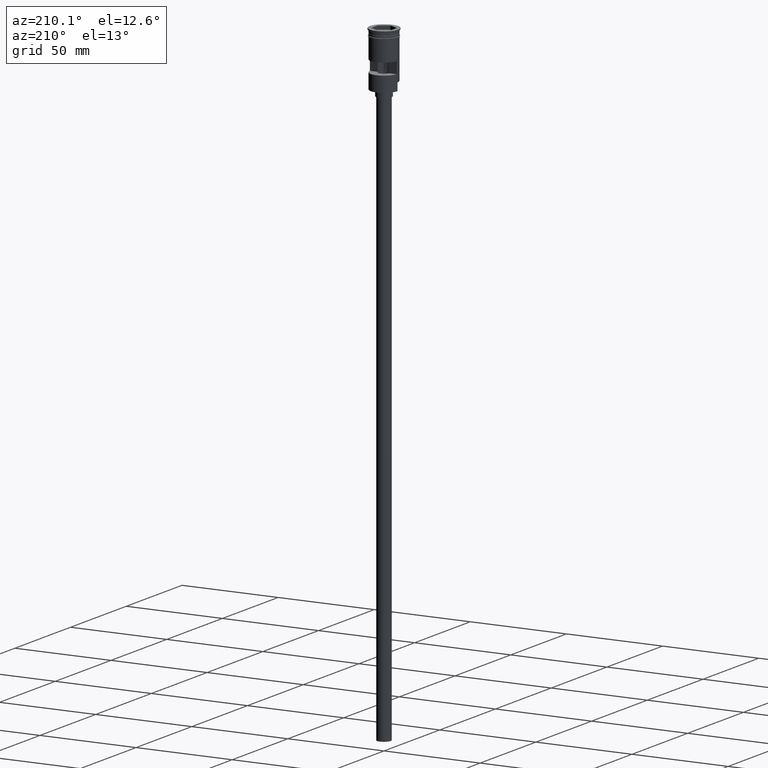
[diagram: clean part render]
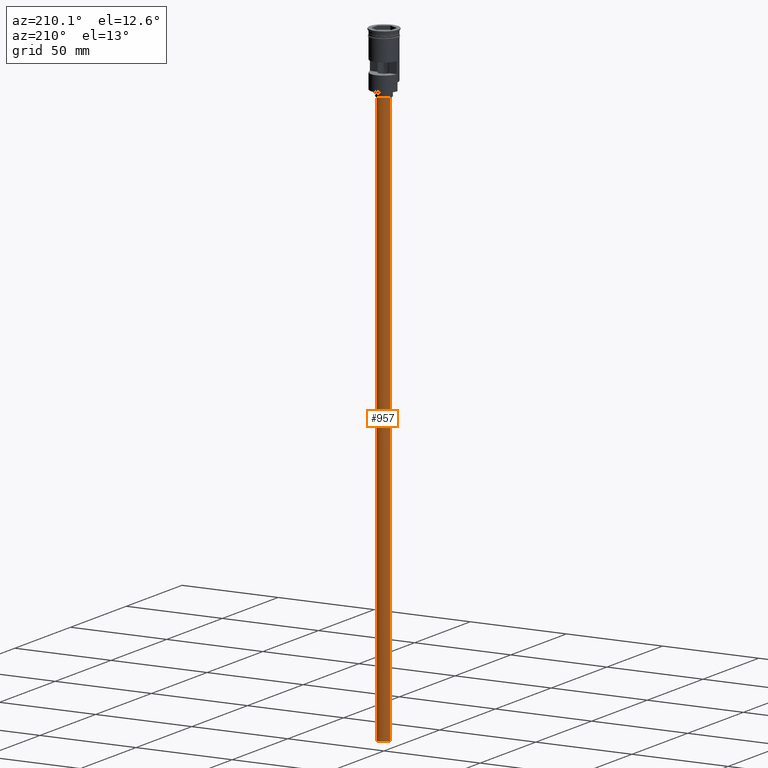
[diagram: same view with one face highlighted and labeled with its STEP entity id]
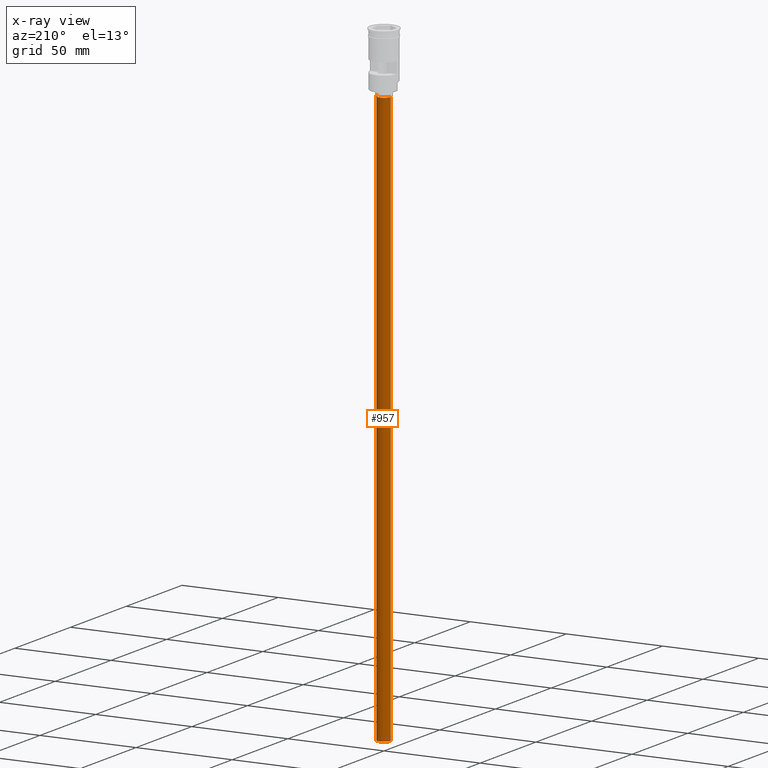
[diagram: x-ray of the same camera — body ghosted, the highlighted face saturated]
A machine part, auxiliary view. The second image highlights one B-rep face of the part: STEP entity #957.
The next image is the same camera in x-ray: the body ghosted, the highlighted face saturated — about 0% of this face is hidden behind the body in this view.
In plain terms, the highlighted cylindrical surface (edge-blend (fillet) strip) has radius 3.5 mm, axis along (-0, -0, 1).
Its self-contained STEP definition (entity closure, byte-faithful):
#18 = VERTEX_POINT ( 'NONE', #451 ) ;
#24 = CARTESIAN_POINT ( 'NONE',  ( 3.500000000000000444, 0.000000000000000000, -328.5000000000000000 ) ) ;
#57 = EDGE_CURVE ( 'NONE', #298, #18, #609, .T. ) ;
#79 = AXIS2_PLACEMENT_3D ( 'NONE', #1289, #172, #678 ) ;
#89 = DIRECTION ( 'NONE',  ( 0.000000000000000000, 0.000000000000000000, -1.000000000000000000 ) ) ;
#94 = CARTESIAN_POINT ( 'NONE',  ( 0.000000000000000000, 0.000000000000000000, -328.5000000000000000 ) ) ;
#119 = DIRECTION ( 'NONE',  ( -1.000000000000000000, 0.000000000000000000, 0.000000000000000000 ) ) ;
#172 = DIRECTION ( 'NONE',  ( -0.000000000000000000, -0.000000000000000000, 1.000000000000000000 ) ) ;
#180 = VERTEX_POINT ( 'NONE', #794 ) ;
#243 = AXIS2_PLACEMENT_3D ( 'NONE', #990, #366, #119 ) ;
#287 = AXIS2_PLACEMENT_3D ( 'NONE', #94, #89, #960 ) ;
#298 = VERTEX_POINT ( 'NONE', #461 ) ;
#314 = ORIENTED_EDGE ( 'NONE', *, *, #57, .F. ) ;
#366 = DIRECTION ( 'NONE',  ( 0.000000000000000000, 0.000000000000000000, -1.000000000000000000 ) ) ;
#383 = DIRECTION ( 'NONE',  ( -0.000000000000000000, -0.000000000000000000, 1.000000000000000000 ) ) ;
#412 = DIRECTION ( 'NONE',  ( -0.000000000000000000, -0.000000000000000000, 1.000000000000000000 ) ) ;
#451 = CARTESIAN_POINT ( 'NONE',  ( 3.500000000000000444, 0.000000000000000000, -328.5000000000000000 ) ) ;
#461 = CARTESIAN_POINT ( 'NONE',  ( -3.500000000000000444, 4.286263797015737088E-16, -328.5000000000000000 ) ) ;
#591 = CARTESIAN_POINT ( 'NONE',  ( 3.500000000000000444, 0.000000000000000000, -31.50000000000000000 ) ) ;
#609 = CIRCLE ( 'NONE', #287, 3.500000000000000444 ) ;
#635 = ORIENTED_EDGE ( 'NONE', *, *, #869, .T. ) ;
#661 = LINE ( 'NONE', #24, #1242 ) ;
#678 = DIRECTION ( 'NONE',  ( 1.000000000000000000, 0.000000000000000000, 0.000000000000000000 ) ) ;
#695 = ORIENTED_EDGE ( 'NONE', *, *, #786, .F. ) ;
#786 = EDGE_CURVE ( 'NONE', #18, #928, #661, .T. ) ;
#788 = CYLINDRICAL_SURFACE ( 'NONE', #79, 3.500000000000000444 ) ;
#794 = CARTESIAN_POINT ( 'NONE',  ( -3.500000000000000444, 4.286263797015737088E-16, -31.50000000000000000 ) ) ;
#800 = FACE_OUTER_BOUND ( 'NONE', #1256, .T. ) ;
#869 = EDGE_CURVE ( 'NONE', #180, #928, #1460, .T. ) ;
#928 = VERTEX_POINT ( 'NONE', #591 ) ;
#930 = EDGE_CURVE ( 'NONE', #298, #180, #1173, .T. ) ;
#957 = ADVANCED_FACE ( 'NONE', ( #800 ), #788, .T. ) ;
#960 = DIRECTION ( 'NONE',  ( -1.000000000000000000, 0.000000000000000000, 0.000000000000000000 ) ) ;
#990 = CARTESIAN_POINT ( 'NONE',  ( 0.000000000000000000, 0.000000000000000000, -31.50000000000000000 ) ) ;
#1173 = LINE ( 'NONE', #1410, #1582 ) ;
#1242 = VECTOR ( 'NONE', #383, 1000.000000000000000 ) ;
#1256 = EDGE_LOOP ( 'NONE', ( #314, #1466, #635, #695 ) ) ;
#1289 = CARTESIAN_POINT ( 'NONE',  ( 0.000000000000000000, 0.000000000000000000, -328.5000000000000000 ) ) ;
#1410 = CARTESIAN_POINT ( 'NONE',  ( -3.500000000000000444, 4.286263797015737088E-16, -328.5000000000000000 ) ) ;
#1460 = CIRCLE ( 'NONE', #243, 3.500000000000000444 ) ;
#1466 = ORIENTED_EDGE ( 'NONE', *, *, #930, .T. ) ;
#1582 = VECTOR ( 'NONE', #412, 1000.000000000000000 ) ;